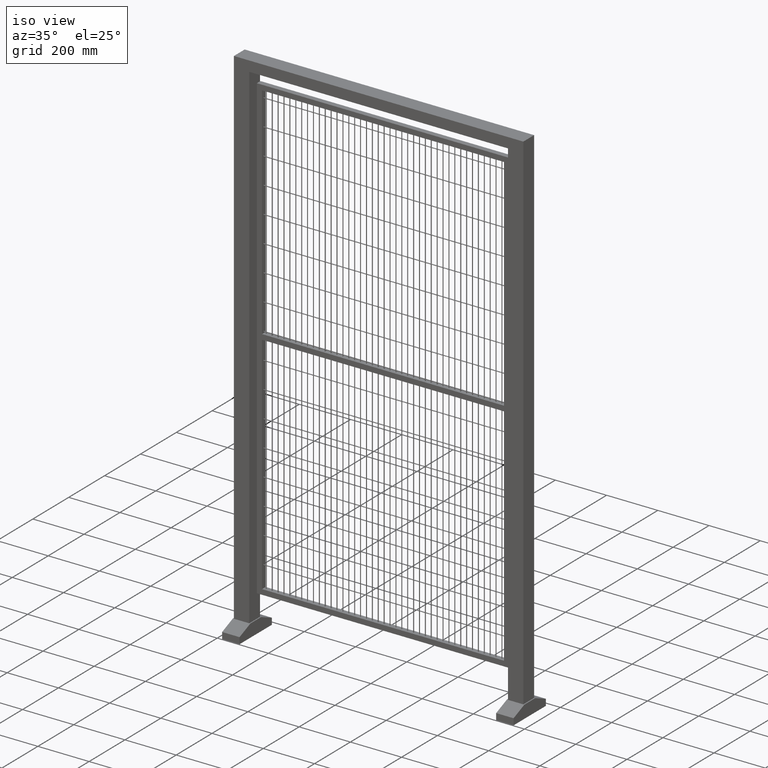
[diagram: clean part render]
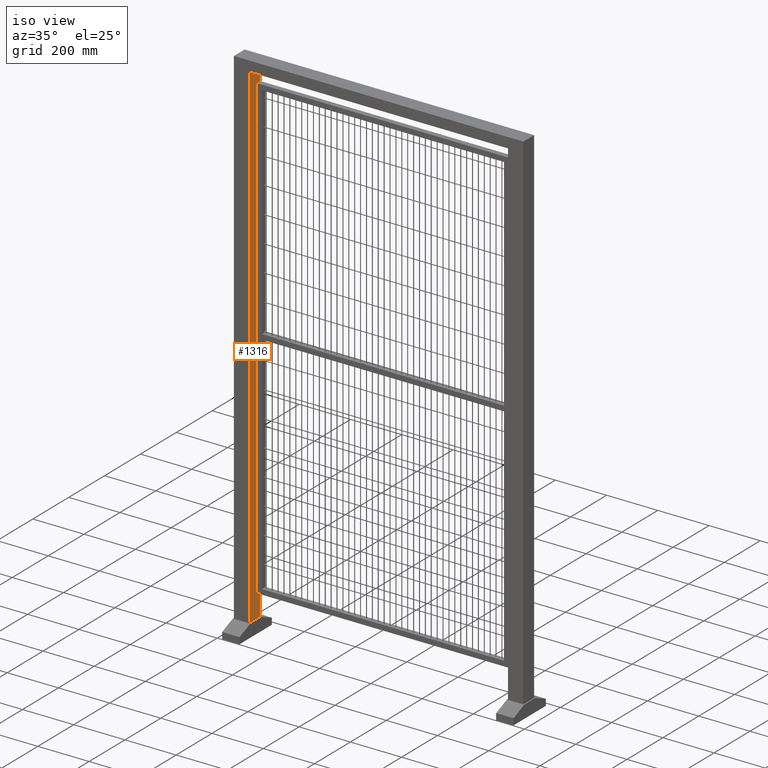
[diagram: same view with one face highlighted and labeled with its STEP entity id]
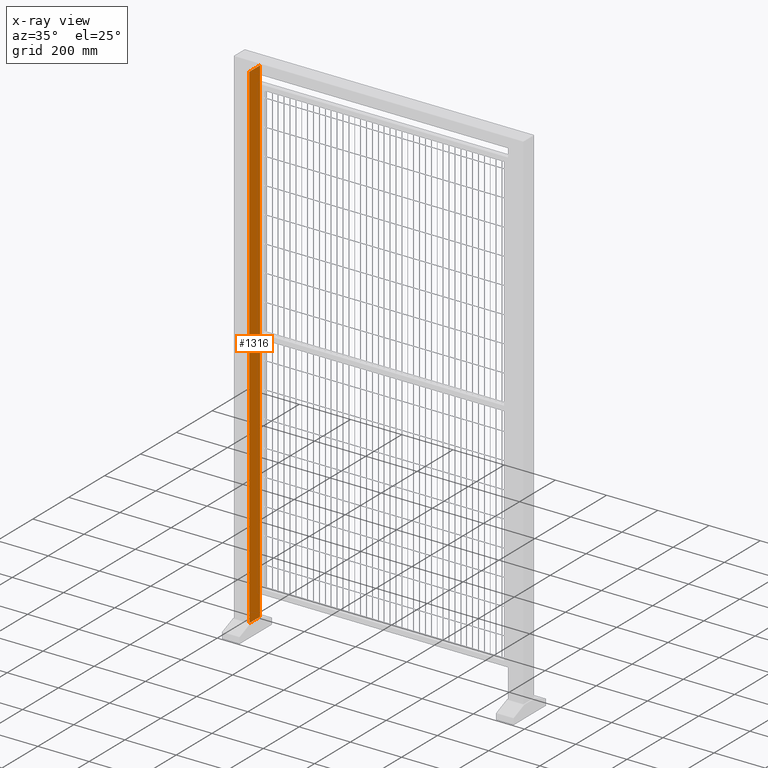
[diagram: x-ray of the same camera — body ghosted, the highlighted face saturated]
A machine part, iso view. The second image highlights one B-rep face of the part: STEP entity #1316.
The next image is the same camera in x-ray: the body ghosted, the highlighted face saturated — about 0% of this face is hidden behind the body in this view.
In plain terms, the highlighted planar face has unit normal (1, -0, 0).
Its self-contained STEP definition (entity closure, byte-faithful):
#144=LINE('',#4516,#238);
#148=LINE('',#4525,#242);
#151=LINE('',#4531,#245);
#154=LINE('',#4537,#248);
#238=VECTOR('',#3885,1.);
#242=VECTOR('',#3891,1.);
#245=VECTOR('',#3896,1.);
#248=VECTOR('',#3901,1.);
#951=PLANE('',#3138);
#1100=FACE_OUTER_BOUND('',#1811,.T.);
#1316=ADVANCED_FACE('',(#1100),#951,.T.);
#1811=EDGE_LOOP('',(#2234,#2235,#2236,#2237));
#2234=ORIENTED_EDGE('',*,*,#2648,.T.);
#2235=ORIENTED_EDGE('',*,*,#2652,.T.);
#2236=ORIENTED_EDGE('',*,*,#2655,.T.);
#2237=ORIENTED_EDGE('',*,*,#2658,.T.);
#2434=VERTEX_POINT('',#4517);
#2435=VERTEX_POINT('',#4518);
#2438=VERTEX_POINT('',#4526);
#2440=VERTEX_POINT('',#4532);
#2648=EDGE_CURVE('',#2434,#2435,#144,.T.);
#2652=EDGE_CURVE('',#2435,#2438,#148,.T.);
#2655=EDGE_CURVE('',#2438,#2440,#151,.T.);
#2658=EDGE_CURVE('',#2440,#2434,#154,.T.);
#3138=AXIS2_PLACEMENT_3D('',#4541,#3907,#3908);
#3885=DIRECTION('',(0.,0.,-1.));
#3891=DIRECTION('',(-1.,0.,0.));
#3896=DIRECTION('',(1.78286071528963E-18,0.,1.));
#3901=DIRECTION('',(1.,0.,0.));
#3907=DIRECTION('',(0.,1.,0.));
#3908=DIRECTION('',(0.,0.,1.));
#4516=CARTESIAN_POINT('',(30.,30.,1996.));
#4517=CARTESIAN_POINT('',(30.,30.,1996.));
#4518=CARTESIAN_POINT('',(30.,30.,50.));
#4525=CARTESIAN_POINT('',(30.,30.,50.));
#4526=CARTESIAN_POINT('',(-30.,30.,50.));
#4531=CARTESIAN_POINT('',(-30.,30.,50.));
#4532=CARTESIAN_POINT('',(-30.,30.,1996.));
#4537=CARTESIAN_POINT('',(-30.,30.,1996.));
#4541=CARTESIAN_POINT('',(0.,30.,0.));